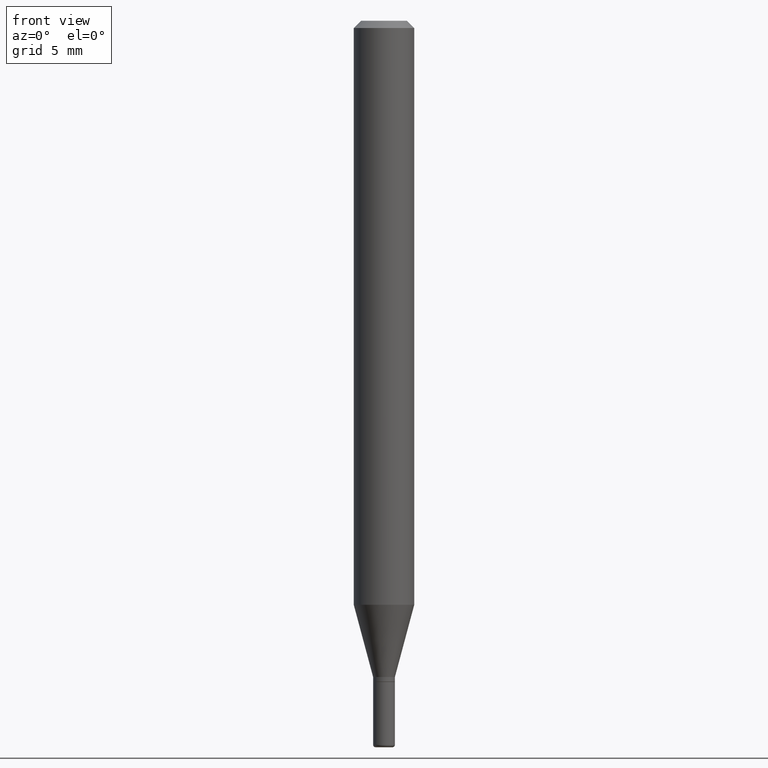
[diagram: clean part render]
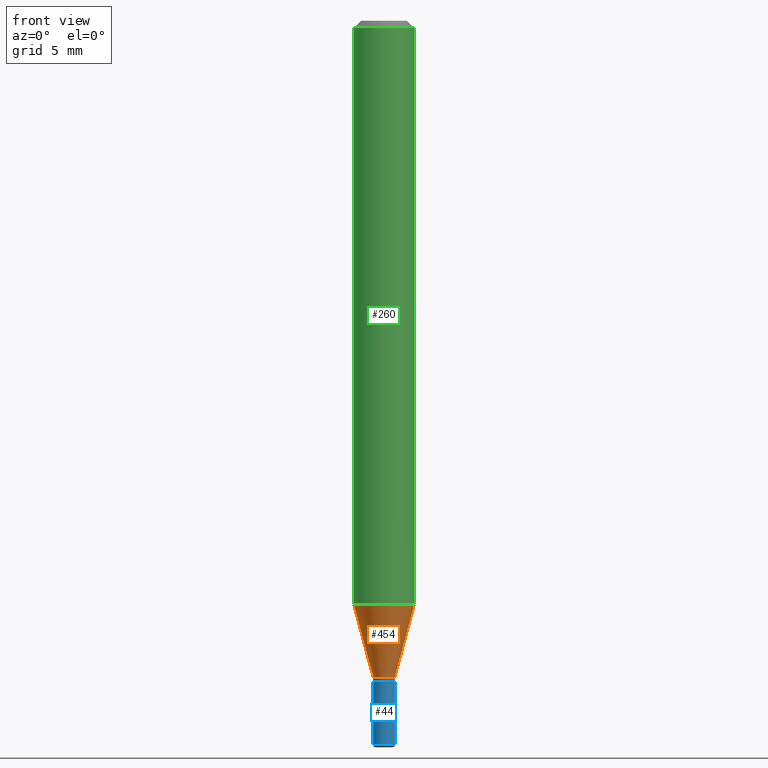
[diagram: same view with three faces highlighted in distinct colors, each labeled with its STEP entity id]
A machine part, front view with three faces highlighted in distinct colors.
Their STEP definitions:

[orange] entity #454 — the highlighted conical surface has half-angle 15 deg.
#3 = VERTEX_POINT ( 'NONE', #460 ) ;
#5 = DIRECTION ( 'NONE',  ( -2.445468806185136597E-29, 3.491481338843145583E-15, 1.000000000000000000 ) ) ;
#18 = CIRCLE ( 'NONE', #403, 0.06250000000000000000 ) ;
#46 = CARTESIAN_POINT ( 'NONE',  ( 3.313610232380861411E-29, -4.730957214132463998E-15, -1.355000000000000426 ) ) ;
#58 = VECTOR ( 'NONE', #61, 39.37007874015748854 ) ;
#61 = DIRECTION ( 'NONE',  ( -0.2588190451025206840, 5.211531920934545520E-15, 0.9659258262890682012 ) ) ;
#70 = EDGE_CURVE ( 'NONE', #132, #309, #287, .T. ) ;
#78 = CONICAL_SURFACE ( 'NONE', #117, 0.02250000000000007896, 0.2617993877991494078 ) ;
#83 = ORIENTED_EDGE ( 'NONE', *, *, #97, .T. ) ;
#97 = EDGE_CURVE ( 'NONE', #309, #293, #500, .T. ) ;
#117 = AXIS2_PLACEMENT_3D ( 'NONE', #46, #215, #363 ) ;
#120 = ORIENTED_EDGE ( 'NONE', *, *, #70, .T. ) ;
#132 = VERTEX_POINT ( 'NONE', #271 ) ;
#141 = DIRECTION ( 'NONE',  ( -2.445468806185136597E-29, 3.491481338843145583E-15, 1.000000000000000000 ) ) ;
#178 = CARTESIAN_POINT ( 'NONE',  ( 0.06250000000000000000, -4.646176951478207651E-15, -1.205717967697245596 ) ) ;
#215 = DIRECTION ( 'NONE',  ( -2.445468806185136597E-29, 3.491481338843145583E-15, 1.000000000000000000 ) ) ;
#219 = EDGE_LOOP ( 'NONE', ( #435, #120, #83, #358 ) ) ;
#224 = CARTESIAN_POINT ( 'NONE',  ( 3.313610232380861411E-29, -4.730957214132463998E-15, -1.355000000000000426 ) ) ;
#264 = EDGE_CURVE ( 'NONE', #3, #293, #18, .T. ) ;
#271 = CARTESIAN_POINT ( 'NONE',  ( -0.02250000000000007896, -4.168368836429596353E-15, -1.355000000000000426 ) ) ;
#287 = CIRCLE ( 'NONE', #458, 0.02250000000000007896 ) ;
#293 = VERTEX_POINT ( 'NONE', #178 ) ;
#298 = CARTESIAN_POINT ( 'NONE',  ( -0.02250000000000007896, -4.571085098586440920E-15, -1.355000000000000426 ) ) ;
#299 = DIRECTION ( 'NONE',  ( 1.000000000000000000, -6.982962677686286432E-15, 0.000000000000000000 ) ) ;
#309 = VERTEX_POINT ( 'NONE', #485 ) ;
#326 = DIRECTION ( 'NONE',  ( 1.000000000000000000, -6.982962677686270655E-15, 0.000000000000000000 ) ) ;
#334 = DIRECTION ( 'NONE',  ( 0.2588190451025206840, 1.565188264969626504E-15, 0.9659258262890682012 ) ) ;
#345 = CARTESIAN_POINT ( 'NONE',  ( 0.02250000000000007896, -4.888073874380405630E-15, -1.355000000000000426 ) ) ;
#358 = ORIENTED_EDGE ( 'NONE', *, *, #264, .F. ) ;
#363 = DIRECTION ( 'NONE',  ( 1.000000000000000000, -6.982962677686286432E-15, 0.000000000000000000 ) ) ;
#403 = AXIS2_PLACEMENT_3D ( 'NONE', #447, #5, #326 ) ;
#421 = LINE ( 'NONE', #298, #58 ) ;
#429 = VECTOR ( 'NONE', #334, 39.37007874015748854 ) ;
#435 = ORIENTED_EDGE ( 'NONE', *, *, #478, .F. ) ;
#447 = CARTESIAN_POINT ( 'NONE',  ( 2.948545679060552191E-29, -4.209741784122815192E-15, -1.205717967697245596 ) ) ;
#448 = FACE_OUTER_BOUND ( 'NONE', #219, .T. ) ;
#454 = ADVANCED_FACE ( 'NONE', ( #448 ), #78, .T. ) ;
#458 = AXIS2_PLACEMENT_3D ( 'NONE', #224, #141, #299 ) ;
#460 = CARTESIAN_POINT ( 'NONE',  ( -0.06250000000000000000, -3.765652574272752576E-15, -1.205717967697245596 ) ) ;
#478 = EDGE_CURVE ( 'NONE', #132, #3, #421, .T. ) ;
#485 = CARTESIAN_POINT ( 'NONE',  ( 0.02250000000000007896, -4.888073874380405630E-15, -1.355000000000000426 ) ) ;
#500 = LINE ( 'NONE', #345, #429 ) ;

[blue] entity #44 — the highlighted cylindrical surface (edge-blend (fillet) strip) has radius 0.5715 mm, axis along (-0, 0, 1).
#8 = AXIS2_PLACEMENT_3D ( 'NONE', #187, #108, #452 ) ;
#23 = EDGE_CURVE ( 'NONE', #33, #110, #342, .T. ) ;
#33 = VERTEX_POINT ( 'NONE', #296 ) ;
#35 = ORIENTED_EDGE ( 'NONE', *, *, #415, .T. ) ;
#44 = ADVANCED_FACE ( 'NONE', ( #100 ), #301, .T. ) ;
#45 = DIRECTION ( 'NONE',  ( -2.445468806185136597E-29, 3.491481338843145583E-15, 1.000000000000000000 ) ) ;
#68 = AXIS2_PLACEMENT_3D ( 'NONE', #180, #455, #103 ) ;
#75 = EDGE_CURVE ( 'NONE', #110, #445, #295, .T. ) ;
#82 = CARTESIAN_POINT ( 'NONE',  ( 0.02250000000000017958, -5.376881261818446351E-15, -1.495000000000000329 ) ) ;
#94 = CARTESIAN_POINT ( 'NONE',  ( -0.02250000000000008937, 1.598721155460231769E-16, -1.106760395307358334E-30 ) ) ;
#100 = FACE_OUTER_BOUND ( 'NONE', #122, .T. ) ;
#103 = DIRECTION ( 'NONE',  ( 1.000000000000000000, -6.982962677686269077E-15, 0.000000000000000000 ) ) ;
#108 = DIRECTION ( 'NONE',  ( -2.445468806185136597E-29, 3.491481338843145583E-15, 1.000000000000000000 ) ) ;
#110 = VERTEX_POINT ( 'NONE', #195 ) ;
#122 = EDGE_LOOP ( 'NONE', ( #270, #35, #317, #399 ) ) ;
#147 = DIRECTION ( 'NONE',  ( -2.445468806185136877E-29, 3.491481338843145188E-15, 1.000000000000000000 ) ) ;
#163 = CARTESIAN_POINT ( 'NONE',  ( 0.02249999999999999917, -4.922988687768834913E-15, -1.364999999999999991 ) ) ;
#180 = CARTESIAN_POINT ( 'NONE',  ( 3.338064920442711836E-29, -4.765872027520893280E-15, -1.364999999999999991 ) ) ;
#181 = LINE ( 'NONE', #269, #258 ) ;
#187 = CARTESIAN_POINT ( 'NONE',  ( 0.000000000000000000, 0.000000000000000000, 0.000000000000000000 ) ) ;
#195 = CARTESIAN_POINT ( 'NONE',  ( -0.02249999999999999917, -4.832946198999675921E-15, -1.364999999999999991 ) ) ;
#214 = DIRECTION ( 'NONE',  ( 1.000000000000000000, -6.982962677686255667E-15, 0.000000000000000000 ) ) ;
#257 = VERTEX_POINT ( 'NONE', #82 ) ;
#258 = VECTOR ( 'NONE', #450, 39.37007874015748143 ) ;
#269 = CARTESIAN_POINT ( 'NONE',  ( 0.02250000000000008937, -1.571166602479416074E-16, 1.097139774554090038E-30 ) ) ;
#270 = ORIENTED_EDGE ( 'NONE', *, *, #23, .F. ) ;
#295 = CIRCLE ( 'NONE', #68, 0.02249999999999999917 ) ;
#296 = CARTESIAN_POINT ( 'NONE',  ( -0.02250000000000017958, -4.832946198999673555E-15, -1.495000000000000329 ) ) ;
#297 = CIRCLE ( 'NONE', #477, 0.02250000000000017958 ) ;
#301 = CYLINDRICAL_SURFACE ( 'NONE', #8, 0.02250000000000008937 ) ;
#317 = ORIENTED_EDGE ( 'NONE', *, *, #517, .T. ) ;
#342 = LINE ( 'NONE', #94, #368 ) ;
#368 = VECTOR ( 'NONE', #147, 39.37007874015748143 ) ;
#399 = ORIENTED_EDGE ( 'NONE', *, *, #75, .F. ) ;
#415 = EDGE_CURVE ( 'NONE', #33, #257, #297, .T. ) ;
#445 = VERTEX_POINT ( 'NONE', #163 ) ;
#450 = DIRECTION ( 'NONE',  ( -2.445468806185136877E-29, 3.491481338843145188E-15, 1.000000000000000000 ) ) ;
#452 = DIRECTION ( 'NONE',  ( 1.000000000000000000, -6.982962677686265922E-15, 4.876176775795936353E-29 ) ) ;
#455 = DIRECTION ( 'NONE',  ( -2.445468806185136597E-29, 3.491481338843145583E-15, 1.000000000000000000 ) ) ;
#477 = AXIS2_PLACEMENT_3D ( 'NONE', #491, #45, #214 ) ;
#491 = CARTESIAN_POINT ( 'NONE',  ( 3.655975865246779683E-29, -5.219764601570503930E-15, -1.495000000000000329 ) ) ;
#517 = EDGE_CURVE ( 'NONE', #257, #445, #181, .T. ) ;

[green] entity #260 — the highlighted cylindrical surface (edge-blend (fillet) strip) has radius 1.5875 mm, axis along (-0, 0, 1).
#3 = VERTEX_POINT ( 'NONE', #460 ) ;
#4 = CARTESIAN_POINT ( 'NONE',  ( 0.000000000000000000, 0.000000000000000000, 0.000000000000000000 ) ) ;
#5 = DIRECTION ( 'NONE',  ( -2.445468806185136597E-29, 3.491481338843145583E-15, 1.000000000000000000 ) ) ;
#7 = FACE_OUTER_BOUND ( 'NONE', #263, .T. ) ;
#18 = CIRCLE ( 'NONE', #403, 0.06250000000000000000 ) ;
#29 = CARTESIAN_POINT ( 'NONE',  ( 3.668203209277632395E-31, -5.237222008264614861E-17, -0.01499999999999970281 ) ) ;
#38 = DIRECTION ( 'NONE',  ( -2.445468806185136597E-29, 3.491481338843145583E-15, 1.000000000000000000 ) ) ;
#39 = ORIENTED_EDGE ( 'NONE', *, *, #264, .T. ) ;
#43 = DIRECTION ( 'NONE',  ( 1.000000000000000000, -6.982962677686266711E-15, 4.876176775795935793E-29 ) ) ;
#93 = LINE ( 'NONE', #408, #369 ) ;
#128 = DIRECTION ( 'NONE',  ( -2.445468806185136877E-29, 3.491481338843145188E-15, 1.000000000000000000 ) ) ;
#131 = LINE ( 'NONE', #289, #393 ) ;
#136 = CARTESIAN_POINT ( 'NONE',  ( -0.06250000000000000000, -1.686967792252668322E-15, -0.01499999999999970281 ) ) ;
#155 = DIRECTION ( 'NONE',  ( -2.445468806185136597E-29, 3.491481338843145583E-15, 1.000000000000000000 ) ) ;
#172 = CYLINDRICAL_SURFACE ( 'NONE', #193, 0.06250000000000000000 ) ;
#176 = ORIENTED_EDGE ( 'NONE', *, *, #396, .T. ) ;
#178 = CARTESIAN_POINT ( 'NONE',  ( 0.06250000000000000000, -4.646176951478207651E-15, -1.205717967697245596 ) ) ;
#190 = EDGE_CURVE ( 'NONE', #255, #463, #486, .T. ) ;
#193 = AXIS2_PLACEMENT_3D ( 'NONE', #4, #38, #43 ) ;
#247 = ORIENTED_EDGE ( 'NONE', *, *, #461, .F. ) ;
#251 = CARTESIAN_POINT ( 'NONE',  ( 0.06250000000000000000, -4.888073874380378612E-16, -0.01499999999999970281 ) ) ;
#255 = VERTEX_POINT ( 'NONE', #136 ) ;
#260 = ADVANCED_FACE ( 'NONE', ( #7 ), #172, .T. ) ;
#263 = EDGE_LOOP ( 'NONE', ( #247, #39, #176, #449 ) ) ;
#264 = EDGE_CURVE ( 'NONE', #3, #293, #18, .T. ) ;
#289 = CARTESIAN_POINT ( 'NONE',  ( 0.06250000000000000000, -4.364351673553916694E-16, 3.047610484872459871E-30 ) ) ;
#293 = VERTEX_POINT ( 'NONE', #178 ) ;
#311 = DIRECTION ( 'NONE',  ( 1.000000000000000000, -6.982962677686266711E-15, 0.000000000000000000 ) ) ;
#324 = DIRECTION ( 'NONE',  ( -2.445468806185136877E-29, 3.491481338843145188E-15, 1.000000000000000000 ) ) ;
#326 = DIRECTION ( 'NONE',  ( 1.000000000000000000, -6.982962677686270655E-15, 0.000000000000000000 ) ) ;
#336 = AXIS2_PLACEMENT_3D ( 'NONE', #29, #155, #311 ) ;
#369 = VECTOR ( 'NONE', #324, 39.37007874015748143 ) ;
#393 = VECTOR ( 'NONE', #128, 39.37007874015748143 ) ;
#396 = EDGE_CURVE ( 'NONE', #293, #463, #131, .T. ) ;
#403 = AXIS2_PLACEMENT_3D ( 'NONE', #447, #5, #326 ) ;
#408 = CARTESIAN_POINT ( 'NONE',  ( -0.06250000000000000000, 4.440892098500626162E-16, -3.074334431409316114E-30 ) ) ;
#447 = CARTESIAN_POINT ( 'NONE',  ( 2.948545679060552191E-29, -4.209741784122815192E-15, -1.205717967697245596 ) ) ;
#449 = ORIENTED_EDGE ( 'NONE', *, *, #190, .F. ) ;
#460 = CARTESIAN_POINT ( 'NONE',  ( -0.06250000000000000000, -3.765652574272752576E-15, -1.205717967697245596 ) ) ;
#461 = EDGE_CURVE ( 'NONE', #3, #255, #93, .T. ) ;
#463 = VERTEX_POINT ( 'NONE', #251 ) ;
#486 = CIRCLE ( 'NONE', #336, 0.06250000000000000000 ) ;